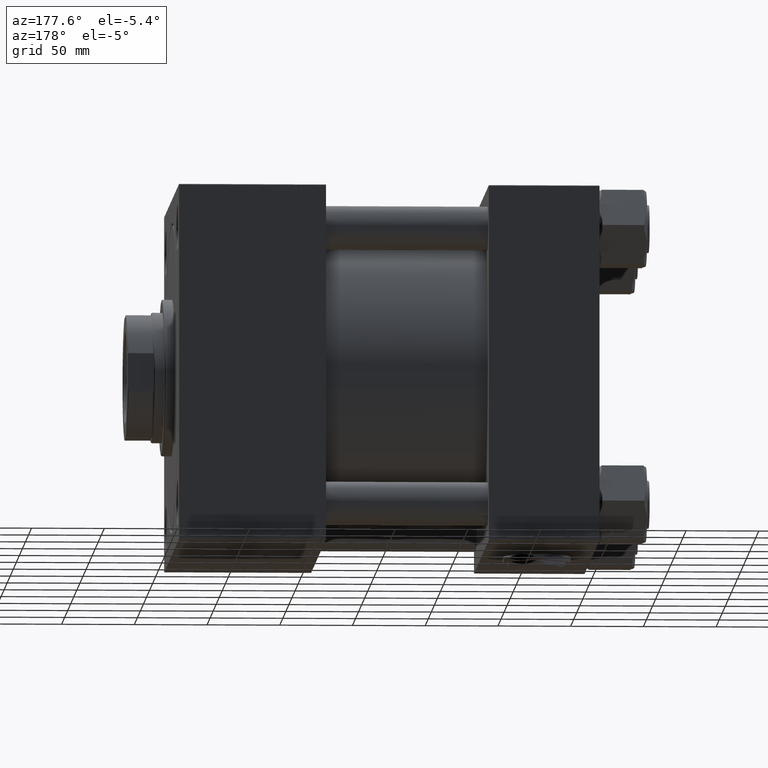
[diagram: clean part render]
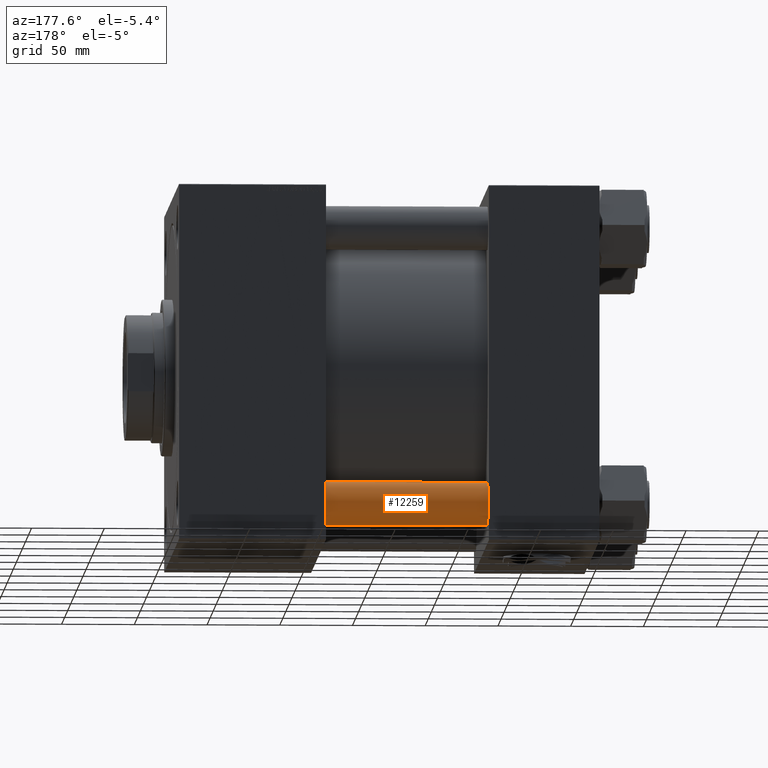
[diagram: same view with one face highlighted and labeled with its STEP entity id]
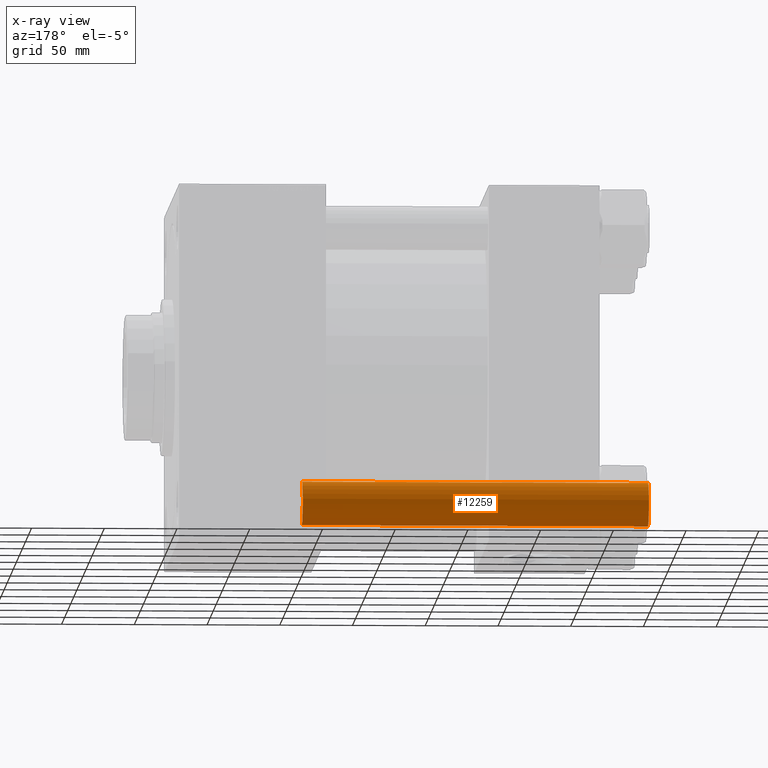
[diagram: x-ray of the same camera — body ghosted, the highlighted face saturated]
A machine part, auxiliary view. The second image highlights one B-rep face of the part: STEP entity #12259.
The next image is the same camera in x-ray: the body ghosted, the highlighted face saturated — about 0% of this face is hidden behind the body in this view.
In plain terms, the highlighted cylindrical surface (edge-blend (fillet) strip) has radius 15 mm, axis along (1, -0, -0).
Its self-contained STEP definition (entity closure, byte-faithful):
#309 = CARTESIAN_POINT ( 'NONE',  ( 15.00000000000000000, 1.836970198721029194E-15, 238.5000000000000568 ) ) ;
#2701 = CARTESIAN_POINT ( 'NONE',  ( 0.000000000000000000, 0.000000000000000000, 239.0000000000000000 ) ) ;
#3653 = ORIENTED_EDGE ( 'NONE', *, *, #48851, .T. ) ;
#4081 = CARTESIAN_POINT ( 'NONE',  ( 15.00000000000000000, 1.836970198721029194E-15, 239.0000000000000000 ) ) ;
#5717 = AXIS2_PLACEMENT_3D ( 'NONE', #7752, #20752, #28459 ) ;
#6214 = EDGE_LOOP ( 'NONE', ( #3653, #43245, #42621, #13095 ) ) ;
#7746 = FACE_OUTER_BOUND ( 'NONE', #6214, .T. ) ;
#7752 = CARTESIAN_POINT ( 'NONE',  ( 0.000000000000000000, 0.000000000000000000, 238.5000000000000568 ) ) ;
#8059 = LINE ( 'NONE', #4081, #13317 ) ;
#12259 = ADVANCED_FACE ( 'NONE', ( #7746 ), #52120, .T. ) ;
#12353 = VECTOR ( 'NONE', #25219, 1000.000000000000000 ) ;
#13095 = ORIENTED_EDGE ( 'NONE', *, *, #40020, .F. ) ;
#13317 = VECTOR ( 'NONE', #40475, 1000.000000000000000 ) ;
#13776 = EDGE_CURVE ( 'NONE', #47879, #15411, #47079, .T. ) ;
#14296 = DIRECTION ( 'NONE',  ( -0.000000000000000000, -0.000000000000000000, 1.000000000000000000 ) ) ;
#15411 = VERTEX_POINT ( 'NONE', #49048 ) ;
#18893 = DIRECTION ( 'NONE',  ( -0.000000000000000000, -0.000000000000000000, -1.000000000000000000 ) ) ;
#20353 = VERTEX_POINT ( 'NONE', #309 ) ;
#20752 = DIRECTION ( 'NONE',  ( 0.000000000000000000, 0.000000000000000000, -1.000000000000000000 ) ) ;
#25219 = DIRECTION ( 'NONE',  ( -0.000000000000000000, -0.000000000000000000, -1.000000000000000000 ) ) ;
#28459 = DIRECTION ( 'NONE',  ( 1.000000000000000000, 0.000000000000000000, 0.000000000000000000 ) ) ;
#30497 = DIRECTION ( 'NONE',  ( 1.000000000000000000, 0.000000000000000000, 0.000000000000000000 ) ) ;
#33958 = LINE ( 'NONE', #45394, #12353 ) ;
#35104 = DIRECTION ( 'NONE',  ( -1.000000000000000000, 0.000000000000000000, 0.000000000000000000 ) ) ;
#37165 = CARTESIAN_POINT ( 'NONE',  ( -15.00000000000000000, 0.000000000000000000, 238.5000000000000568 ) ) ;
#40020 = EDGE_CURVE ( 'NONE', #44328, #15411, #33958, .T. ) ;
#40475 = DIRECTION ( 'NONE',  ( -0.000000000000000000, -0.000000000000000000, -1.000000000000000000 ) ) ;
#42008 = CARTESIAN_POINT ( 'NONE',  ( 15.00000000000000000, 1.836970198721029194E-15, 0.5000000000002502443 ) ) ;
#42621 = ORIENTED_EDGE ( 'NONE', *, *, #13776, .T. ) ;
#43245 = ORIENTED_EDGE ( 'NONE', *, *, #46633, .T. ) ;
#43661 = AXIS2_PLACEMENT_3D ( 'NONE', #50698, #14296, #30497 ) ;
#44328 = VERTEX_POINT ( 'NONE', #37165 ) ;
#45325 = AXIS2_PLACEMENT_3D ( 'NONE', #2701, #18893, #35104 ) ;
#45394 = CARTESIAN_POINT ( 'NONE',  ( -15.00000000000000000, 0.000000000000000000, 239.0000000000000000 ) ) ;
#46633 = EDGE_CURVE ( 'NONE', #20353, #47879, #8059, .T. ) ;
#47079 = CIRCLE ( 'NONE', #43661, 15.00000000000000000 ) ;
#47879 = VERTEX_POINT ( 'NONE', #42008 ) ;
#48851 = EDGE_CURVE ( 'NONE', #44328, #20353, #49029, .T. ) ;
#49029 = CIRCLE ( 'NONE', #5717, 15.00000000000000000 ) ;
#49048 = CARTESIAN_POINT ( 'NONE',  ( -15.00000000000000000, 0.000000000000000000, 0.5000000000002502443 ) ) ;
#50698 = CARTESIAN_POINT ( 'NONE',  ( 0.000000000000000000, 0.000000000000000000, 0.5000000000002502443 ) ) ;
#52120 = CYLINDRICAL_SURFACE ( 'NONE', #45325, 15.00000000000000000 ) ;